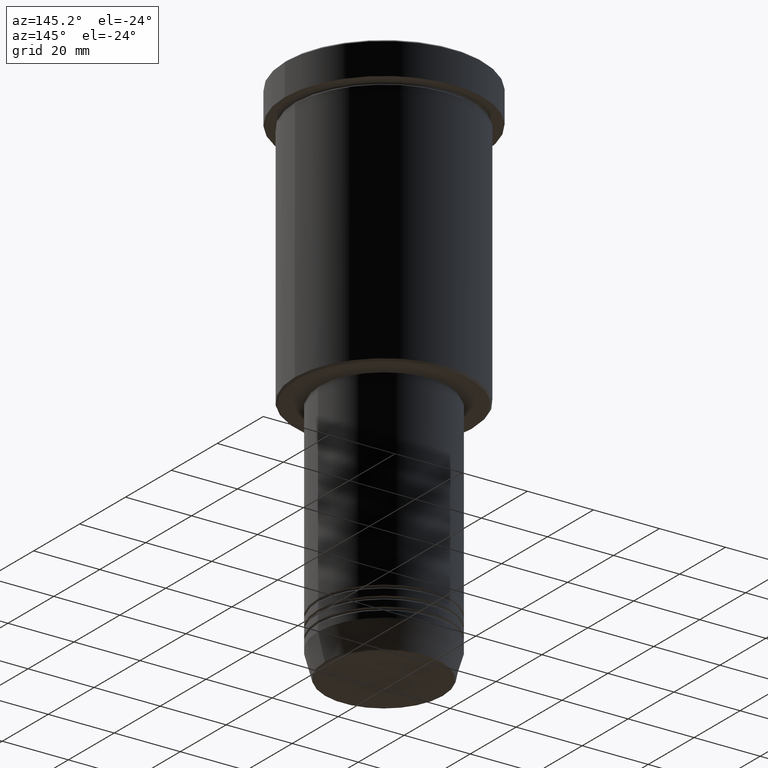
[diagram: clean part render]
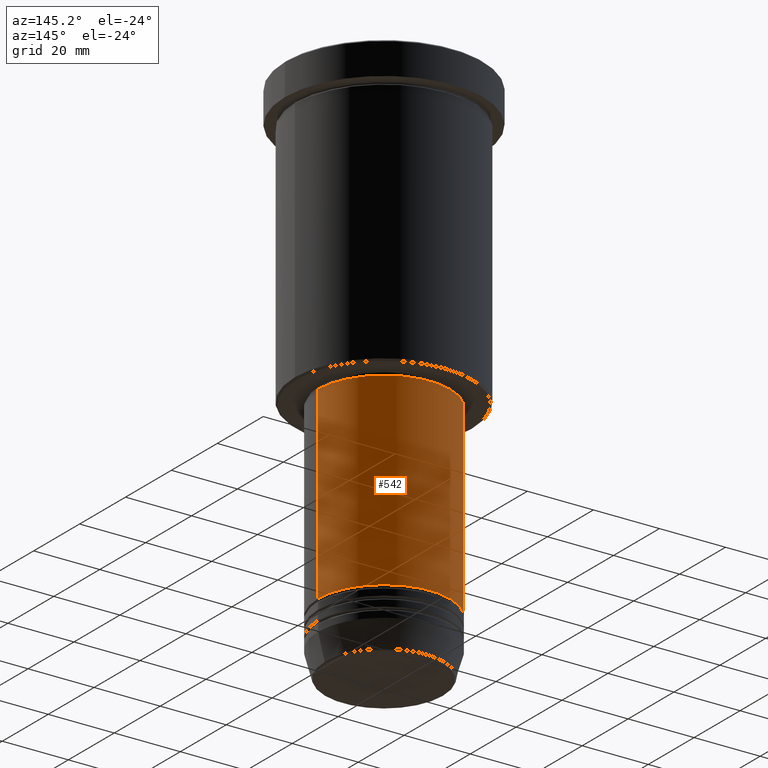
[diagram: same view with one face highlighted and labeled with its STEP entity id]
A machine part, auxiliary view. The second image highlights one B-rep face of the part: STEP entity #542.
In plain terms, the highlighted cylindrical surface (partial cylindrical patch) has radius 20 mm, axis along (-0, -0, 1).
Its self-contained STEP definition (entity closure, byte-faithful):
#3 = DIRECTION ( 'NONE',  ( -0.000000000000000000, -0.000000000000000000, 1.000000000000000000 ) ) ;
#4 = LINE ( 'NONE', #451, #280 ) ;
#26 = DIRECTION ( 'NONE',  ( -0.000000000000000000, -0.000000000000000000, 1.000000000000000000 ) ) ;
#55 = VERTEX_POINT ( 'NONE', #1128 ) ;
#72 = ORIENTED_EDGE ( 'NONE', *, *, #972, .F. ) ;
#106 = CYLINDRICAL_SURFACE ( 'NONE', #956, 20.00000000000000000 ) ;
#225 = DIRECTION ( 'NONE',  ( 1.000000000000000000, 0.000000000000000000, 0.000000000000000000 ) ) ;
#229 = VECTOR ( 'NONE', #282, 1000.000000000000000 ) ;
#231 = AXIS2_PLACEMENT_3D ( 'NONE', #821, #476, #1007 ) ;
#261 = VERTEX_POINT ( 'NONE', #272 ) ;
#272 = CARTESIAN_POINT ( 'NONE',  ( 20.00000000000000000, 0.000000000000000000, -143.9999999999999716 ) ) ;
#280 = VECTOR ( 'NONE', #603, 1000.000000000000000 ) ;
#282 = DIRECTION ( 'NONE',  ( -0.000000000000000000, -0.000000000000000000, 1.000000000000000000 ) ) ;
#311 = DIRECTION ( 'NONE',  ( 1.000000000000000000, 0.000000000000000000, 0.000000000000000000 ) ) ;
#376 = CARTESIAN_POINT ( 'NONE',  ( 0.000000000000000000, 0.000000000000000000, -87.00000000000000000 ) ) ;
#425 = CIRCLE ( 'NONE', #891, 20.00000000000000000 ) ;
#451 = CARTESIAN_POINT ( 'NONE',  ( -20.00000000000000000, 2.449293598294706513E-15, 0.000000000000000000 ) ) ;
#464 = CARTESIAN_POINT ( 'NONE',  ( 20.00000000000000000, 0.000000000000000000, 0.000000000000000000 ) ) ;
#476 = DIRECTION ( 'NONE',  ( -0.000000000000000000, -0.000000000000000000, 1.000000000000000000 ) ) ;
#500 = EDGE_CURVE ( 'NONE', #529, #769, #4, .T. ) ;
#529 = VERTEX_POINT ( 'NONE', #746 ) ;
#542 = ADVANCED_FACE ( 'NONE', ( #1050 ), #106, .T. ) ;
#545 = CIRCLE ( 'NONE', #231, 20.00000000000000000 ) ;
#603 = DIRECTION ( 'NONE',  ( -0.000000000000000000, -0.000000000000000000, 1.000000000000000000 ) ) ;
#670 = ORIENTED_EDGE ( 'NONE', *, *, #1090, .T. ) ;
#719 = CARTESIAN_POINT ( 'NONE',  ( -20.00000000000000000, 2.449293598294706513E-15, -87.00000000000000000 ) ) ;
#746 = CARTESIAN_POINT ( 'NONE',  ( -20.00000000000000000, 2.449293598294706513E-15, -143.9999999999999716 ) ) ;
#769 = VERTEX_POINT ( 'NONE', #719 ) ;
#783 = EDGE_CURVE ( 'NONE', #261, #55, #860, .T. ) ;
#805 = EDGE_LOOP ( 'NONE', ( #670, #906, #72, #989 ) ) ;
#821 = CARTESIAN_POINT ( 'NONE',  ( 0.000000000000000000, 0.000000000000000000, -143.9999999999999716 ) ) ;
#860 = LINE ( 'NONE', #464, #229 ) ;
#891 = AXIS2_PLACEMENT_3D ( 'NONE', #376, #3, #311 ) ;
#906 = ORIENTED_EDGE ( 'NONE', *, *, #500, .T. ) ;
#956 = AXIS2_PLACEMENT_3D ( 'NONE', #1135, #26, #225 ) ;
#972 = EDGE_CURVE ( 'NONE', #55, #769, #425, .T. ) ;
#989 = ORIENTED_EDGE ( 'NONE', *, *, #783, .F. ) ;
#1007 = DIRECTION ( 'NONE',  ( 1.000000000000000000, 0.000000000000000000, 0.000000000000000000 ) ) ;
#1050 = FACE_OUTER_BOUND ( 'NONE', #805, .T. ) ;
#1090 = EDGE_CURVE ( 'NONE', #261, #529, #545, .T. ) ;
#1128 = CARTESIAN_POINT ( 'NONE',  ( 20.00000000000000000, 0.000000000000000000, -87.00000000000000000 ) ) ;
#1135 = CARTESIAN_POINT ( 'NONE',  ( 0.000000000000000000, 0.000000000000000000, 0.000000000000000000 ) ) ;